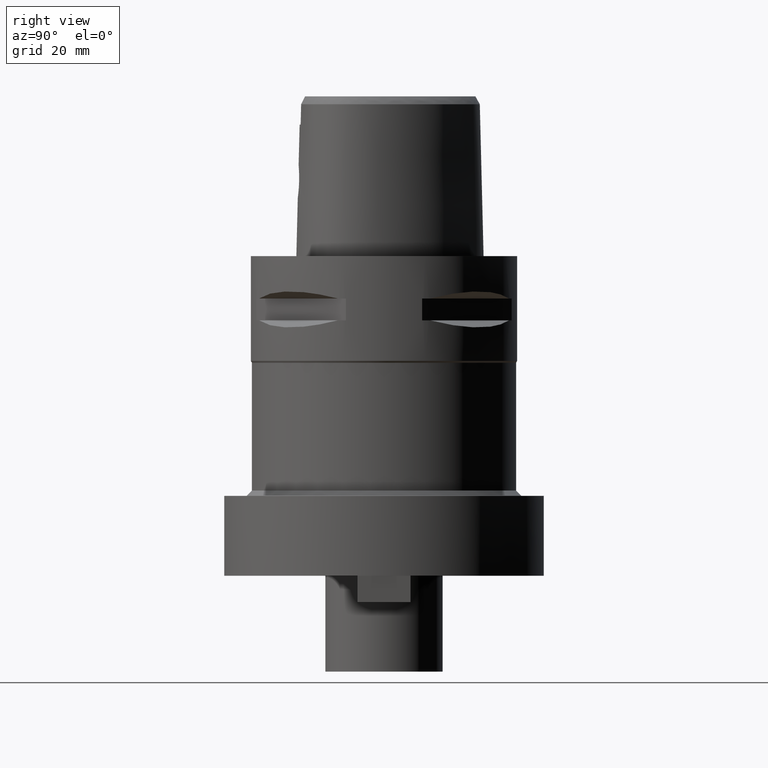
[diagram: clean part render]
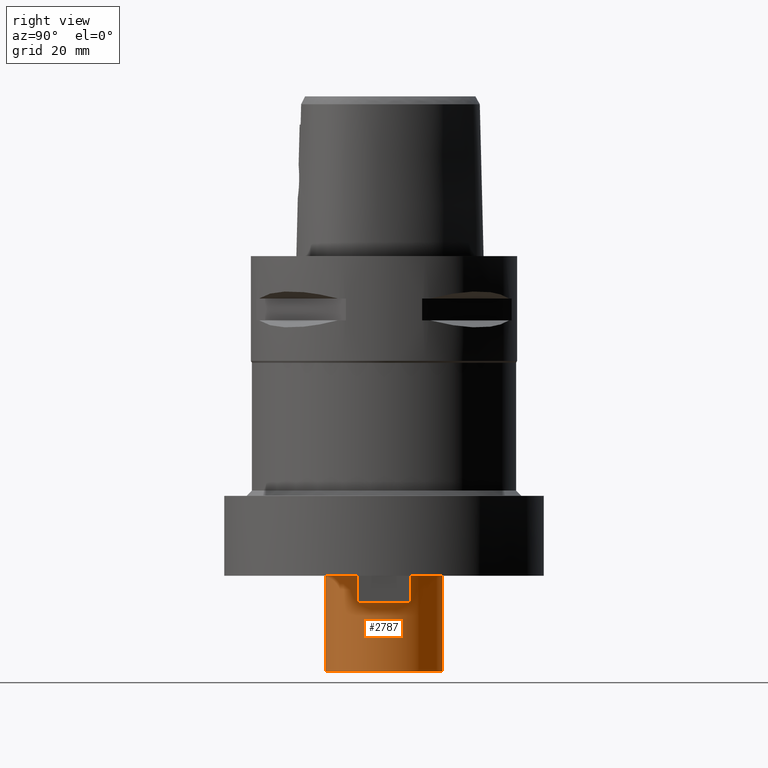
[diagram: same view with one face highlighted and labeled with its STEP entity id]
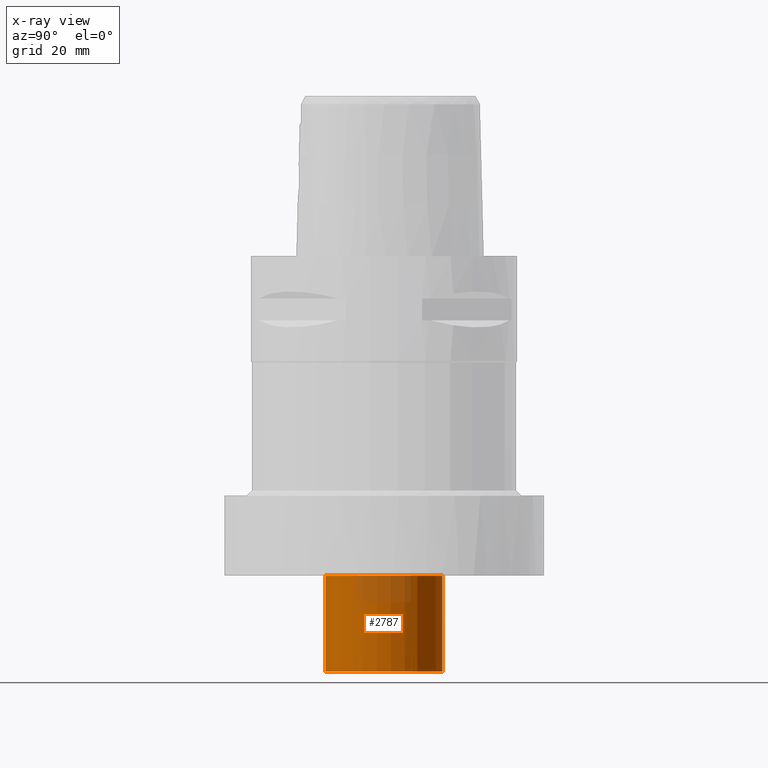
[diagram: x-ray of the same camera — body ghosted, the highlighted face saturated]
A machine part, right view. The second image highlights one B-rep face of the part: STEP entity #2787.
The next image is the same camera in x-ray: the body ghosted, the highlighted face saturated — about 12% of this face is hidden behind the body in this view.
In plain terms, the highlighted cylindrical surface (partial cylindrical patch) has radius 11 mm, axis along (0, 0, -1).
Its self-contained STEP definition (entity closure, byte-faithful):
#652=CARTESIAN_POINT('',(0.E0,1.272408024314E-14,-6.E1));
#653=DIRECTION('',(0.E0,0.E0,-1.E0));
#654=DIRECTION('',(0.E0,1.E0,0.E0));
#655=AXIS2_PLACEMENT_3D('',#652,#653,#654);
#688=DIRECTION('',(0.E0,0.E0,-1.E0));
#689=VECTOR('',#688,1.8E1);
#690=CARTESIAN_POINT('',(0.E0,-1.1E1,-6.E1));
#691=LINE('',#690,#689);
#695=DIRECTION('',(0.E0,0.E0,-1.E0));
#696=VECTOR('',#695,1.8E1);
#697=CARTESIAN_POINT('',(0.E0,1.1E1,-6.E1));
#698=LINE('',#697,#696);
#702=CARTESIAN_POINT('',(0.E0,1.272408024314E-14,-7.8E1));
#703=DIRECTION('',(0.E0,0.E0,1.E0));
#704=DIRECTION('',(0.E0,-1.E0,0.E0));
#705=AXIS2_PLACEMENT_3D('',#702,#703,#704);
#1762=CARTESIAN_POINT('',(0.E0,-1.1E1,-6.E1));
#1763=CARTESIAN_POINT('',(0.E0,1.1E1,-6.E1));
#1764=VERTEX_POINT('',#1762);
#1765=VERTEX_POINT('',#1763);
#1782=CARTESIAN_POINT('',(0.E0,1.1E1,-7.8E1));
#1783=VERTEX_POINT('',#1782);
#1784=CARTESIAN_POINT('',(0.E0,-1.1E1,-7.8E1));
#1785=VERTEX_POINT('',#1784);
#2775=CARTESIAN_POINT('',(0.E0,1.272408024314E-14,3.9E0));
#2776=DIRECTION('',(0.E0,0.E0,-1.E0));
#2777=DIRECTION('',(0.E0,-1.E0,0.E0));
#2778=AXIS2_PLACEMENT_3D('',#2775,#2776,#2777);
#2779=CYLINDRICAL_SURFACE('',#2778,1.1E1);
#2780=ORIENTED_EDGE('',*,*,#2765,.T.);
#2782=ORIENTED_EDGE('',*,*,#2781,.F.);
#2783=ORIENTED_EDGE('',*,*,#2768,.F.);
#2784=ORIENTED_EDGE('',*,*,#2735,.F.);
#2785=EDGE_LOOP('',(#2780,#2782,#2783,#2784));
#2786=FACE_OUTER_BOUND('',#2785,.F.);
#656=CIRCLE('',#655,1.1E1);
#706=CIRCLE('',#705,1.1E1);
#2735=EDGE_CURVE('',#1765,#1764,#656,.T.);
#2765=EDGE_CURVE('',#1765,#1783,#698,.T.);
#2768=EDGE_CURVE('',#1764,#1785,#691,.T.);
#2781=EDGE_CURVE('',#1785,#1783,#706,.T.);
#2787=ADVANCED_FACE('',(#2786),#2779,.T.);